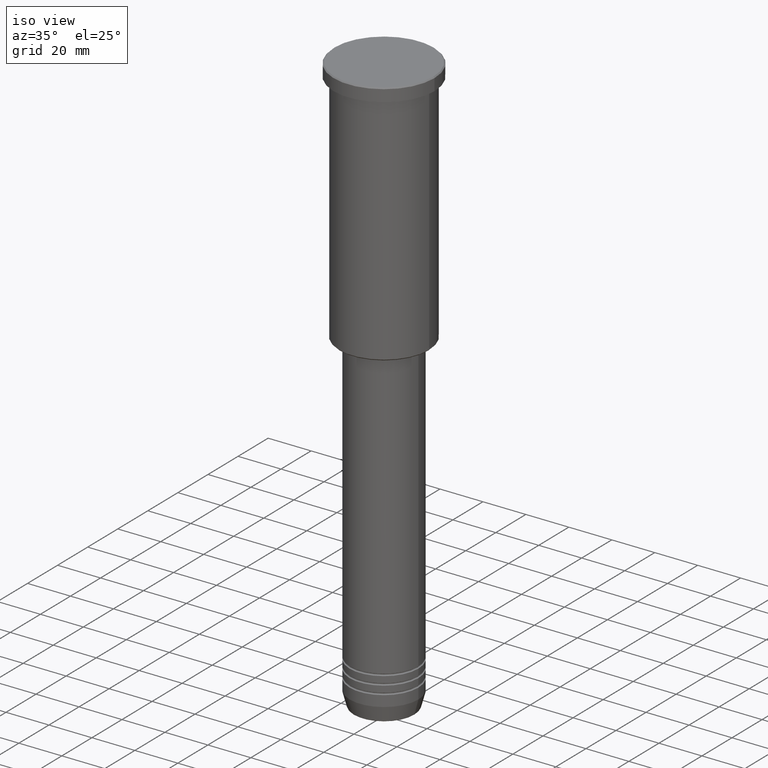
[diagram: clean part render]
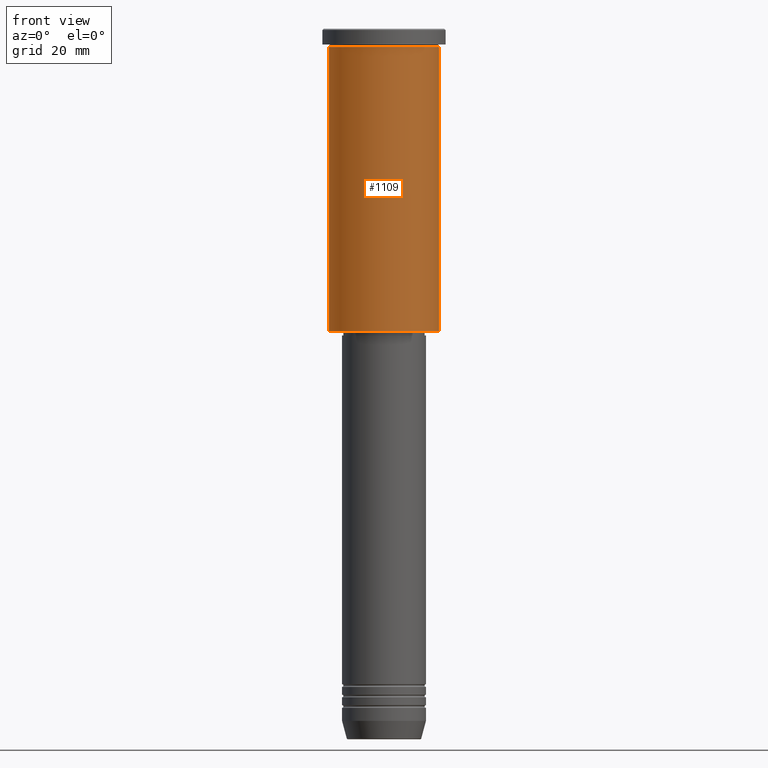
[diagram: tour spotlight — one face highlighted and labeled with its STEP entity id]
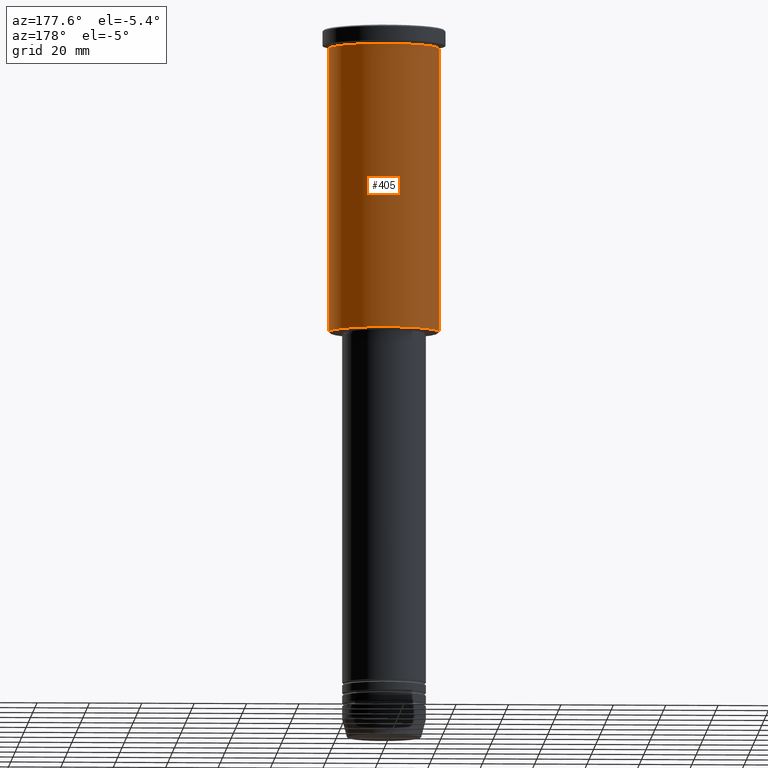
[diagram: tour spotlight — one face highlighted and labeled with its STEP entity id]
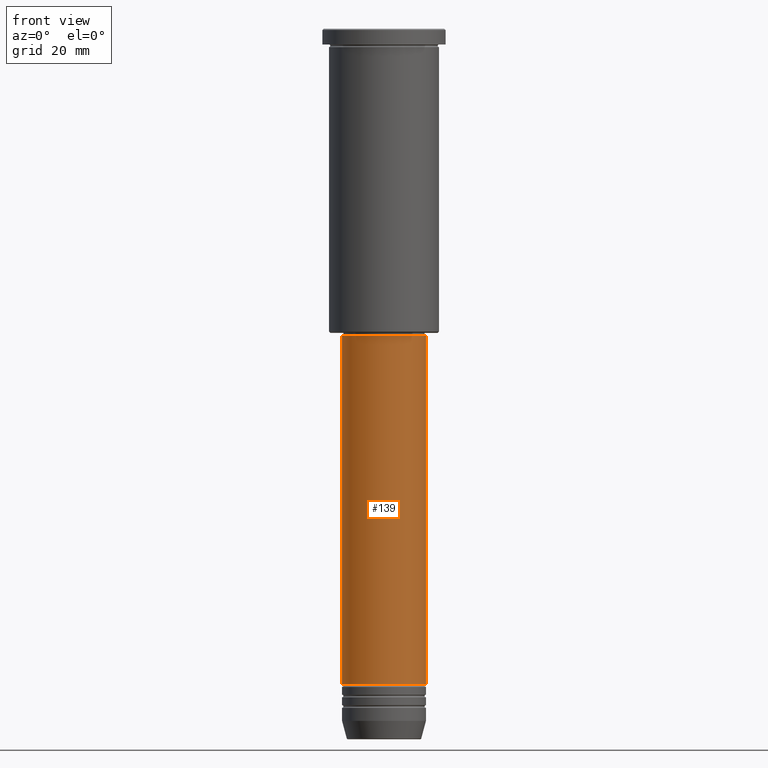
[diagram: tour spotlight — one face highlighted and labeled with its STEP entity id]
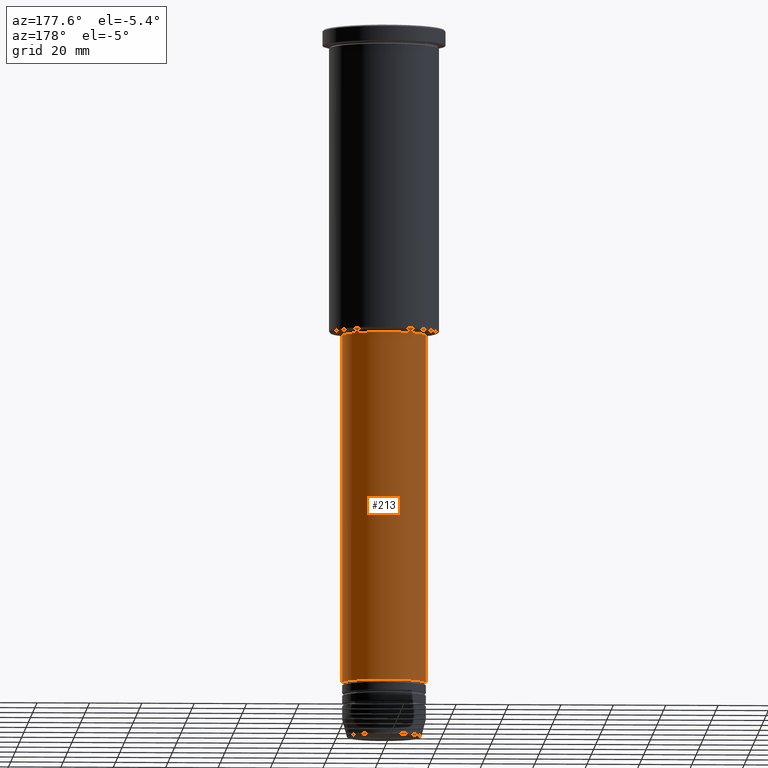
[diagram: tour spotlight — one face highlighted and labeled with its STEP entity id]
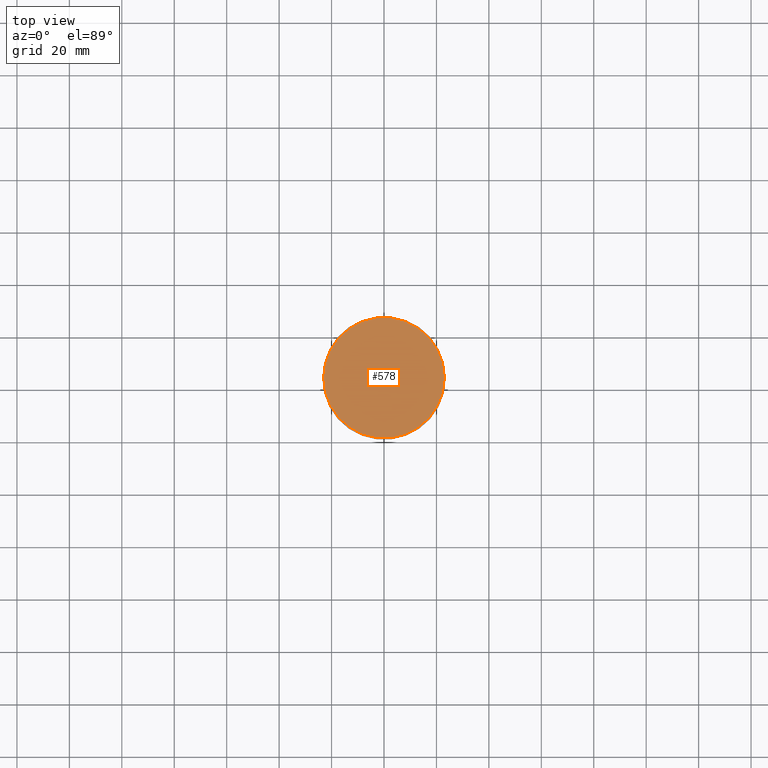
[diagram: tour spotlight — one face highlighted and labeled with its STEP entity id]
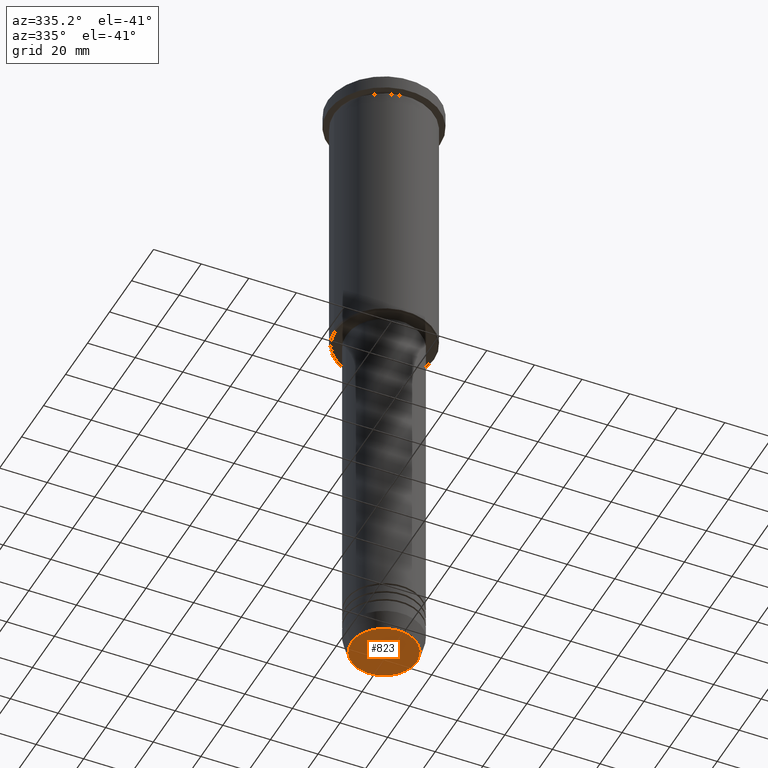
[diagram: tour spotlight — one face highlighted and labeled with its STEP entity id]
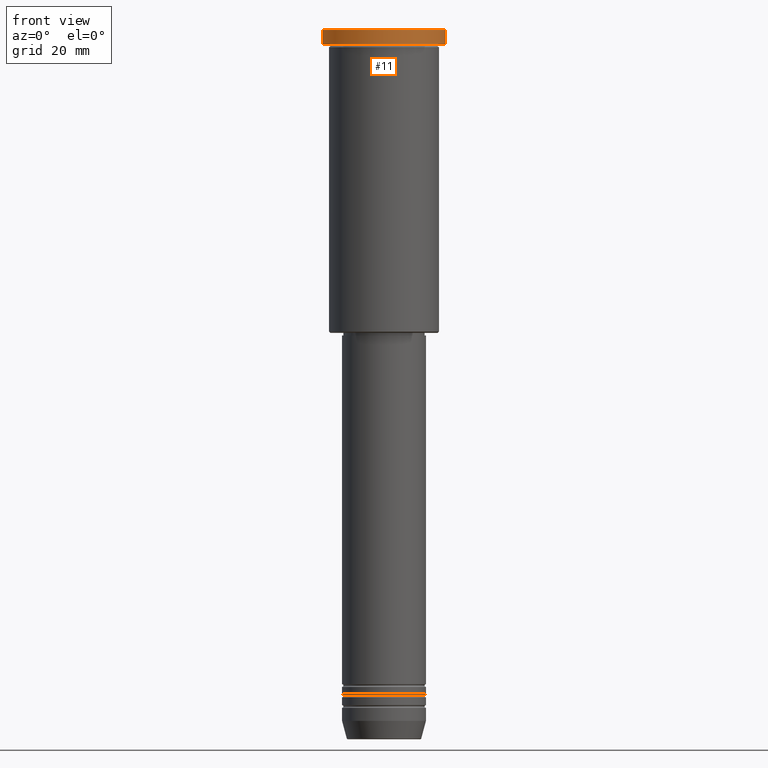
[diagram: tour spotlight — one face highlighted and labeled with its STEP entity id]
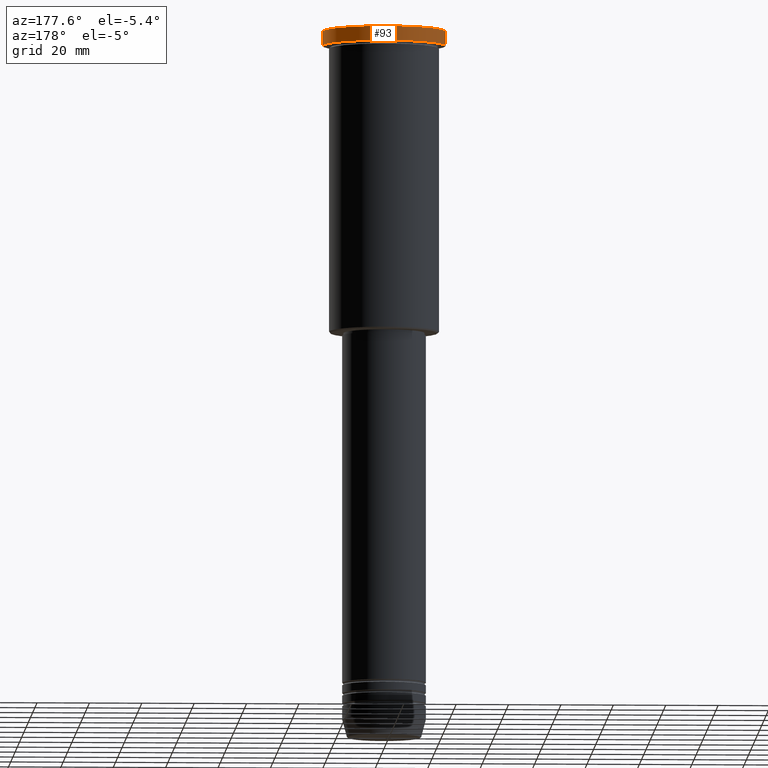
[diagram: tour spotlight — one face highlighted and labeled with its STEP entity id]
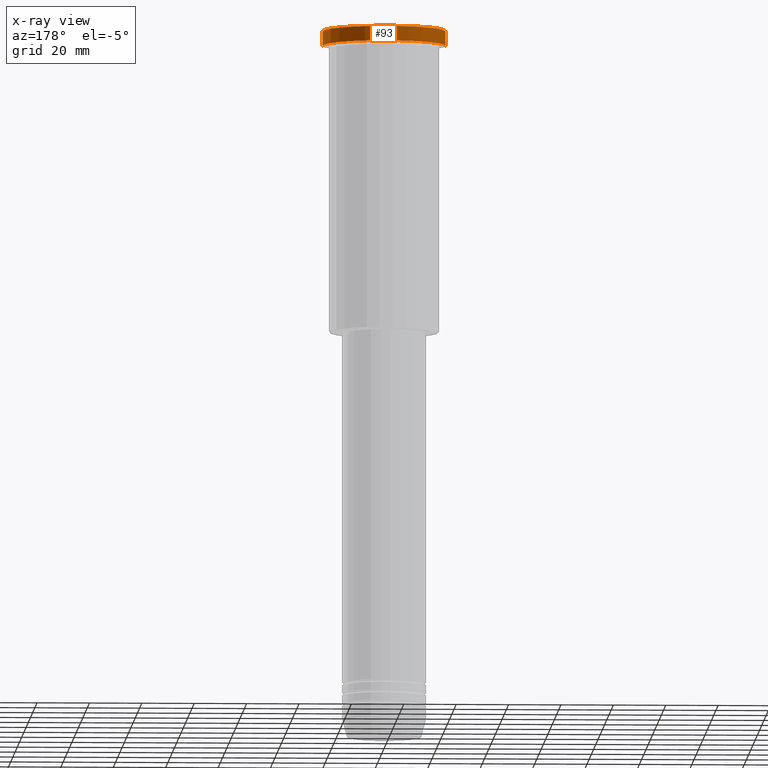
[diagram: x-ray of the same camera — body ghosted, this tour face saturated]
A machine part: a face-by-face anatomy tour. The part has 43 B-rep faces; the first image is the clean iso view, then the 8 largest visible faces are spotlighted one at a time (largest first), each with its STEP entity span.

Face 1 — front view, entity #1109. In plain terms, the highlighted cylindrical surface (partial cylindrical patch) has radius 21 mm, axis along (-0, -0, 1).
Definition (entity closure, byte-faithful):
#18 = DIRECTION ( 'NONE',  ( 1.000000000000000000, 0.000000000000000000, 0.000000000000000000 ) ) ;
#114 = DIRECTION ( 'NONE',  ( -0.000000000000000000, -0.000000000000000000, 1.000000000000000000 ) ) ;
#135 = ORIENTED_EDGE ( 'NONE', *, *, #999, .F. ) ;
#149 = EDGE_LOOP ( 'NONE', ( #135, #496, #667, #785 ) ) ;
#160 = CARTESIAN_POINT ( 'NONE',  ( 21.00000000000000000, 0.000000000000000000, -115.4999999999999574 ) ) ;
#165 = VECTOR ( 'NONE', #196, 1000.000000000000000 ) ;
#184 = CIRCLE ( 'NONE', #1144, 21.00000000000000000 ) ;
#192 = CARTESIAN_POINT ( 'NONE',  ( -21.00000000000000000, 2.571758278209441661E-15, 0.000000000000000000 ) ) ;
#196 = DIRECTION ( 'NONE',  ( -0.000000000000000000, -0.000000000000000000, 1.000000000000000000 ) ) ;
#314 = VERTEX_POINT ( 'NONE', #771 ) ;
#319 = CARTESIAN_POINT ( 'NONE',  ( 21.00000000000000000, 0.000000000000000000, -6.999999999999993783 ) ) ;
#404 = AXIS2_PLACEMENT_3D ( 'NONE', #748, #737, #1018 ) ;
#422 = LINE ( 'NONE', #551, #895 ) ;
#444 = FACE_OUTER_BOUND ( 'NONE', #149, .T. ) ;
#461 = CARTESIAN_POINT ( 'NONE',  ( 0.000000000000000000, 0.000000000000000000, -6.999999999999993783 ) ) ;
#470 = LINE ( 'NONE', #192, #165 ) ;
#471 = AXIS2_PLACEMENT_3D ( 'NONE', #461, #837, #18 ) ;
#490 = VERTEX_POINT ( 'NONE', #160 ) ;
#496 = ORIENTED_EDGE ( 'NONE', *, *, #829, .T. ) ;
#499 = EDGE_CURVE ( 'NONE', #490, #575, #422, .T. ) ;
#551 = CARTESIAN_POINT ( 'NONE',  ( 21.00000000000000000, 0.000000000000000000, 0.000000000000000000 ) ) ;
#575 = VERTEX_POINT ( 'NONE', #319 ) ;
#667 = ORIENTED_EDGE ( 'NONE', *, *, #499, .T. ) ;
#737 = DIRECTION ( 'NONE',  ( -0.000000000000000000, -0.000000000000000000, 1.000000000000000000 ) ) ;
#748 = CARTESIAN_POINT ( 'NONE',  ( 0.000000000000000000, 0.000000000000000000, 0.000000000000000000 ) ) ;
#771 = CARTESIAN_POINT ( 'NONE',  ( -21.00000000000000000, 2.571758278209441661E-15, -6.999999999999993783 ) ) ;
#785 = ORIENTED_EDGE ( 'NONE', *, *, #1121, .F. ) ;
#828 = CYLINDRICAL_SURFACE ( 'NONE', #404, 21.00000000000000000 ) ;
#829 = EDGE_CURVE ( 'NONE', #1116, #490, #184, .T. ) ;
#837 = DIRECTION ( 'NONE',  ( -0.000000000000000000, -0.000000000000000000, 1.000000000000000000 ) ) ;
#868 = DIRECTION ( 'NONE',  ( -1.000000000000000000, 0.000000000000000000, 0.000000000000000000 ) ) ;
#895 = VECTOR ( 'NONE', #1005, 1000.000000000000000 ) ;
#947 = CARTESIAN_POINT ( 'NONE',  ( 0.000000000000000000, 0.000000000000000000, -115.4999999999999574 ) ) ;
#999 = EDGE_CURVE ( 'NONE', #1116, #314, #470, .T. ) ;
#1005 = DIRECTION ( 'NONE',  ( -0.000000000000000000, -0.000000000000000000, 1.000000000000000000 ) ) ;
#1018 = DIRECTION ( 'NONE',  ( 1.000000000000000000, 0.000000000000000000, 0.000000000000000000 ) ) ;
#1072 = CIRCLE ( 'NONE', #471, 21.00000000000000000 ) ;
#1096 = CARTESIAN_POINT ( 'NONE',  ( -21.00000000000000000, 2.571758278209441661E-15, -115.4999999999999574 ) ) ;
#1109 = ADVANCED_FACE ( 'NONE', ( #444 ), #828, .T. ) ;
#1116 = VERTEX_POINT ( 'NONE', #1096 ) ;
#1121 = EDGE_CURVE ( 'NONE', #314, #575, #1072, .T. ) ;
#1144 = AXIS2_PLACEMENT_3D ( 'NONE', #947, #114, #868 ) ;

Face 2 — auxiliary view, entity #405. In plain terms, the highlighted cylindrical surface (partial cylindrical patch) has radius 21 mm, axis along (-0, -0, 1).
Definition (entity closure, byte-faithful):
#58 = CYLINDRICAL_SURFACE ( 'NONE', #1067, 21.00000000000000000 ) ;
#96 = DIRECTION ( 'NONE',  ( -0.000000000000000000, -0.000000000000000000, 1.000000000000000000 ) ) ;
#132 = ORIENTED_EDGE ( 'NONE', *, *, #175, .F. ) ;
#160 = CARTESIAN_POINT ( 'NONE',  ( 21.00000000000000000, 0.000000000000000000, -115.4999999999999574 ) ) ;
#165 = VECTOR ( 'NONE', #196, 1000.000000000000000 ) ;
#175 = EDGE_CURVE ( 'NONE', #575, #314, #858, .T. ) ;
#192 = CARTESIAN_POINT ( 'NONE',  ( -21.00000000000000000, 2.571758278209441661E-15, 0.000000000000000000 ) ) ;
#196 = DIRECTION ( 'NONE',  ( -0.000000000000000000, -0.000000000000000000, 1.000000000000000000 ) ) ;
#222 = CARTESIAN_POINT ( 'NONE',  ( 0.000000000000000000, 0.000000000000000000, 0.000000000000000000 ) ) ;
#252 = DIRECTION ( 'NONE',  ( -0.000000000000000000, -0.000000000000000000, 1.000000000000000000 ) ) ;
#276 = DIRECTION ( 'NONE',  ( -1.000000000000000000, 0.000000000000000000, 0.000000000000000000 ) ) ;
#314 = VERTEX_POINT ( 'NONE', #771 ) ;
#319 = CARTESIAN_POINT ( 'NONE',  ( 21.00000000000000000, 0.000000000000000000, -6.999999999999993783 ) ) ;
#334 = ORIENTED_EDGE ( 'NONE', *, *, #673, .T. ) ;
#405 = ADVANCED_FACE ( 'NONE', ( #873 ), #58, .T. ) ;
#422 = LINE ( 'NONE', #551, #895 ) ;
#470 = LINE ( 'NONE', #192, #165 ) ;
#490 = VERTEX_POINT ( 'NONE', #160 ) ;
#498 = DIRECTION ( 'NONE',  ( 1.000000000000000000, 0.000000000000000000, 0.000000000000000000 ) ) ;
#499 = EDGE_CURVE ( 'NONE', #490, #575, #422, .T. ) ;
#523 = EDGE_LOOP ( 'NONE', ( #334, #716, #132, #541 ) ) ;
#541 = ORIENTED_EDGE ( 'NONE', *, *, #499, .F. ) ;
#551 = CARTESIAN_POINT ( 'NONE',  ( 21.00000000000000000, 0.000000000000000000, 0.000000000000000000 ) ) ;
#552 = CARTESIAN_POINT ( 'NONE',  ( 0.000000000000000000, 0.000000000000000000, -115.4999999999999574 ) ) ;
#575 = VERTEX_POINT ( 'NONE', #319 ) ;
#673 = EDGE_CURVE ( 'NONE', #490, #1116, #768, .T. ) ;
#713 = CARTESIAN_POINT ( 'NONE',  ( 0.000000000000000000, 0.000000000000000000, -6.999999999999993783 ) ) ;
#716 = ORIENTED_EDGE ( 'NONE', *, *, #999, .T. ) ;
#768 = CIRCLE ( 'NONE', #939, 21.00000000000000000 ) ;
#771 = CARTESIAN_POINT ( 'NONE',  ( -21.00000000000000000, 2.571758278209441661E-15, -6.999999999999993783 ) ) ;
#858 = CIRCLE ( 'NONE', #1013, 21.00000000000000000 ) ;
#873 = FACE_OUTER_BOUND ( 'NONE', #523, .T. ) ;
#895 = VECTOR ( 'NONE', #1005, 1000.000000000000000 ) ;
#939 = AXIS2_PLACEMENT_3D ( 'NONE', #552, #96, #276 ) ;
#961 = DIRECTION ( 'NONE',  ( -0.000000000000000000, -0.000000000000000000, 1.000000000000000000 ) ) ;
#999 = EDGE_CURVE ( 'NONE', #1116, #314, #470, .T. ) ;
#1005 = DIRECTION ( 'NONE',  ( -0.000000000000000000, -0.000000000000000000, 1.000000000000000000 ) ) ;
#1013 = AXIS2_PLACEMENT_3D ( 'NONE', #713, #252, #1155 ) ;
#1067 = AXIS2_PLACEMENT_3D ( 'NONE', #222, #961, #498 ) ;
#1096 = CARTESIAN_POINT ( 'NONE',  ( -21.00000000000000000, 2.571758278209441661E-15, -115.4999999999999574 ) ) ;
#1116 = VERTEX_POINT ( 'NONE', #1096 ) ;
#1155 = DIRECTION ( 'NONE',  ( 1.000000000000000000, 0.000000000000000000, 0.000000000000000000 ) ) ;

Face 3 — front view, entity #139. In plain terms, the highlighted cylindrical surface (partial cylindrical patch) has radius 16 mm, axis along (-0, -0, 1).
Definition (entity closure, byte-faithful):
#40 = DIRECTION ( 'NONE',  ( 1.000000000000000000, 0.000000000000000000, 0.000000000000000000 ) ) ;
#73 = VERTEX_POINT ( 'NONE', #567 ) ;
#138 = CARTESIAN_POINT ( 'NONE',  ( 0.000000000000000000, 0.000000000000000000, -249.9999999999999147 ) ) ;
#139 = ADVANCED_FACE ( 'NONE', ( #955 ), #383, .T. ) ;
#188 = CARTESIAN_POINT ( 'NONE',  ( -16.00000000000000000, 1.959434878635765131E-15, 0.000000000000000000 ) ) ;
#244 = VECTOR ( 'NONE', #321, 1000.000000000000000 ) ;
#249 = CARTESIAN_POINT ( 'NONE',  ( -16.00000000000000355, 1.959434878635765526E-15, -117.0000000000000426 ) ) ;
#255 = AXIS2_PLACEMENT_3D ( 'NONE', #138, #691, #772 ) ;
#261 = ORIENTED_EDGE ( 'NONE', *, *, #335, .T. ) ;
#273 = AXIS2_PLACEMENT_3D ( 'NONE', #397, #1046, #318 ) ;
#294 = CARTESIAN_POINT ( 'NONE',  ( 16.00000000000000355, 0.000000000000000000, -117.0000000000000426 ) ) ;
#311 = EDGE_CURVE ( 'NONE', #886, #804, #441, .T. ) ;
#318 = DIRECTION ( 'NONE',  ( 1.000000000000000000, 0.000000000000000000, 0.000000000000000000 ) ) ;
#321 = DIRECTION ( 'NONE',  ( -0.000000000000000000, -0.000000000000000000, 1.000000000000000000 ) ) ;
#335 = EDGE_CURVE ( 'NONE', #818, #73, #420, .T. ) ;
#336 = ORIENTED_EDGE ( 'NONE', *, *, #311, .F. ) ;
#345 = ORIENTED_EDGE ( 'NONE', *, *, #733, .F. ) ;
#383 = CYLINDRICAL_SURFACE ( 'NONE', #273, 16.00000000000000000 ) ;
#397 = CARTESIAN_POINT ( 'NONE',  ( 0.000000000000000000, 0.000000000000000000, 0.000000000000000000 ) ) ;
#420 = CIRCLE ( 'NONE', #255, 16.00000000000000000 ) ;
#441 = CIRCLE ( 'NONE', #676, 16.00000000000000355 ) ;
#450 = LINE ( 'NONE', #188, #725 ) ;
#567 = CARTESIAN_POINT ( 'NONE',  ( 16.00000000000000000, 0.000000000000000000, -249.9999999999999147 ) ) ;
#573 = DIRECTION ( 'NONE',  ( -0.000000000000000000, -0.000000000000000000, 1.000000000000000000 ) ) ;
#579 = CARTESIAN_POINT ( 'NONE',  ( -16.00000000000000000, 1.959434878635765131E-15, -249.9999999999999147 ) ) ;
#598 = CARTESIAN_POINT ( 'NONE',  ( 0.000000000000000000, 0.000000000000000000, -117.0000000000000426 ) ) ;
#601 = CARTESIAN_POINT ( 'NONE',  ( 16.00000000000000000, 0.000000000000000000, 0.000000000000000000 ) ) ;
#607 = EDGE_LOOP ( 'NONE', ( #345, #261, #944, #336 ) ) ;
#676 = AXIS2_PLACEMENT_3D ( 'NONE', #598, #1036, #40 ) ;
#691 = DIRECTION ( 'NONE',  ( -0.000000000000000000, -0.000000000000000000, 1.000000000000000000 ) ) ;
#725 = VECTOR ( 'NONE', #573, 1000.000000000000000 ) ;
#733 = EDGE_CURVE ( 'NONE', #818, #886, #450, .T. ) ;
#772 = DIRECTION ( 'NONE',  ( 1.000000000000000000, 0.000000000000000000, 0.000000000000000000 ) ) ;
#804 = VERTEX_POINT ( 'NONE', #294 ) ;
#818 = VERTEX_POINT ( 'NONE', #579 ) ;
#886 = VERTEX_POINT ( 'NONE', #249 ) ;
#944 = ORIENTED_EDGE ( 'NONE', *, *, #1131, .T. ) ;
#955 = FACE_OUTER_BOUND ( 'NONE', #607, .T. ) ;
#971 = LINE ( 'NONE', #601, #244 ) ;
#1036 = DIRECTION ( 'NONE',  ( -0.000000000000000000, -0.000000000000000000, 1.000000000000000000 ) ) ;
#1046 = DIRECTION ( 'NONE',  ( -0.000000000000000000, -0.000000000000000000, 1.000000000000000000 ) ) ;
#1131 = EDGE_CURVE ( 'NONE', #73, #804, #971, .T. ) ;

Face 4 — auxiliary view, entity #213. In plain terms, the highlighted cylindrical surface (partial cylindrical patch) has radius 16 mm, axis along (-0, -0, 1).
Definition (entity closure, byte-faithful):
#7 = DIRECTION ( 'NONE',  ( 1.000000000000000000, 0.000000000000000000, 0.000000000000000000 ) ) ;
#73 = VERTEX_POINT ( 'NONE', #567 ) ;
#81 = DIRECTION ( 'NONE',  ( 1.000000000000000000, 0.000000000000000000, 0.000000000000000000 ) ) ;
#87 = ORIENTED_EDGE ( 'NONE', *, *, #815, .T. ) ;
#142 = ORIENTED_EDGE ( 'NONE', *, *, #1131, .F. ) ;
#187 = CIRCLE ( 'NONE', #317, 16.00000000000000355 ) ;
#188 = CARTESIAN_POINT ( 'NONE',  ( -16.00000000000000000, 1.959434878635765131E-15, 0.000000000000000000 ) ) ;
#213 = ADVANCED_FACE ( 'NONE', ( #428 ), #623, .T. ) ;
#244 = VECTOR ( 'NONE', #321, 1000.000000000000000 ) ;
#249 = CARTESIAN_POINT ( 'NONE',  ( -16.00000000000000355, 1.959434878635765526E-15, -117.0000000000000426 ) ) ;
#294 = CARTESIAN_POINT ( 'NONE',  ( 16.00000000000000355, 0.000000000000000000, -117.0000000000000426 ) ) ;
#317 = AXIS2_PLACEMENT_3D ( 'NONE', #1001, #528, #81 ) ;
#321 = DIRECTION ( 'NONE',  ( -0.000000000000000000, -0.000000000000000000, 1.000000000000000000 ) ) ;
#428 = FACE_OUTER_BOUND ( 'NONE', #709, .T. ) ;
#445 = AXIS2_PLACEMENT_3D ( 'NONE', #462, #1033, #766 ) ;
#450 = LINE ( 'NONE', #188, #725 ) ;
#462 = CARTESIAN_POINT ( 'NONE',  ( 0.000000000000000000, 0.000000000000000000, -249.9999999999999147 ) ) ;
#469 = CIRCLE ( 'NONE', #445, 16.00000000000000000 ) ;
#521 = ORIENTED_EDGE ( 'NONE', *, *, #733, .T. ) ;
#528 = DIRECTION ( 'NONE',  ( -0.000000000000000000, -0.000000000000000000, 1.000000000000000000 ) ) ;
#537 = DIRECTION ( 'NONE',  ( -0.000000000000000000, -0.000000000000000000, 1.000000000000000000 ) ) ;
#567 = CARTESIAN_POINT ( 'NONE',  ( 16.00000000000000000, 0.000000000000000000, -249.9999999999999147 ) ) ;
#573 = DIRECTION ( 'NONE',  ( -0.000000000000000000, -0.000000000000000000, 1.000000000000000000 ) ) ;
#579 = CARTESIAN_POINT ( 'NONE',  ( -16.00000000000000000, 1.959434878635765131E-15, -249.9999999999999147 ) ) ;
#601 = CARTESIAN_POINT ( 'NONE',  ( 16.00000000000000000, 0.000000000000000000, 0.000000000000000000 ) ) ;
#623 = CYLINDRICAL_SURFACE ( 'NONE', #872, 16.00000000000000000 ) ;
#709 = EDGE_LOOP ( 'NONE', ( #87, #521, #1081, #142 ) ) ;
#725 = VECTOR ( 'NONE', #573, 1000.000000000000000 ) ;
#733 = EDGE_CURVE ( 'NONE', #818, #886, #450, .T. ) ;
#766 = DIRECTION ( 'NONE',  ( 1.000000000000000000, 0.000000000000000000, 0.000000000000000000 ) ) ;
#804 = VERTEX_POINT ( 'NONE', #294 ) ;
#815 = EDGE_CURVE ( 'NONE', #73, #818, #469, .T. ) ;
#818 = VERTEX_POINT ( 'NONE', #579 ) ;
#872 = AXIS2_PLACEMENT_3D ( 'NONE', #993, #537, #7 ) ;
#886 = VERTEX_POINT ( 'NONE', #249 ) ;
#893 = EDGE_CURVE ( 'NONE', #804, #886, #187, .T. ) ;
#971 = LINE ( 'NONE', #601, #244 ) ;
#993 = CARTESIAN_POINT ( 'NONE',  ( 0.000000000000000000, 0.000000000000000000, 0.000000000000000000 ) ) ;
#1001 = CARTESIAN_POINT ( 'NONE',  ( 0.000000000000000000, 0.000000000000000000, -117.0000000000000426 ) ) ;
#1033 = DIRECTION ( 'NONE',  ( -0.000000000000000000, -0.000000000000000000, 1.000000000000000000 ) ) ;
#1081 = ORIENTED_EDGE ( 'NONE', *, *, #893, .F. ) ;
#1131 = EDGE_CURVE ( 'NONE', #73, #804, #971, .T. ) ;

Face 5 — top view, entity #578. In plain terms, the highlighted planar face has unit normal (0, -0, 1).
Definition (entity closure, byte-faithful):
#26 = FACE_OUTER_BOUND ( 'NONE', #91, .T. ) ;
#33 = CARTESIAN_POINT ( 'NONE',  ( 0.000000000000000000, 0.000000000000000000, 0.000000000000000000 ) ) ;
#91 = EDGE_LOOP ( 'NONE', ( #168, #396 ) ) ;
#134 = CARTESIAN_POINT ( 'NONE',  ( 0.000000000000000000, 0.000000000000000000, 0.000000000000000000 ) ) ;
#145 = AXIS2_PLACEMENT_3D ( 'NONE', #33, #922, #480 ) ;
#168 = ORIENTED_EDGE ( 'NONE', *, *, #708, .T. ) ;
#172 = DIRECTION ( 'NONE',  ( -0.000000000000000000, -0.000000000000000000, 1.000000000000000000 ) ) ;
#243 = AXIS2_PLACEMENT_3D ( 'NONE', #1176, #172, #746 ) ;
#380 = EDGE_CURVE ( 'NONE', #866, #1055, #593, .T. ) ;
#389 = DIRECTION ( 'NONE',  ( 1.000000000000000000, 0.000000000000000000, 0.000000000000000000 ) ) ;
#396 = ORIENTED_EDGE ( 'NONE', *, *, #380, .T. ) ;
#480 = DIRECTION ( 'NONE',  ( 1.000000000000000000, 0.000000000000000000, 0.000000000000000000 ) ) ;
#493 = DIRECTION ( 'NONE',  ( -0.000000000000000000, -0.000000000000000000, 1.000000000000000000 ) ) ;
#512 = CARTESIAN_POINT ( 'NONE',  ( 23.00000000000002487, 2.847303808017597717E-15, 0.000000000000000000 ) ) ;
#555 = CIRCLE ( 'NONE', #243, 23.00000000000002487 ) ;
#578 = ADVANCED_FACE ( 'NONE', ( #26 ), #1122, .T. ) ;
#593 = CIRCLE ( 'NONE', #1048, 23.00000000000002487 ) ;
#631 = CARTESIAN_POINT ( 'NONE',  ( -23.00000000000002487, 0.000000000000000000, 0.000000000000000000 ) ) ;
#708 = EDGE_CURVE ( 'NONE', #1055, #866, #555, .T. ) ;
#746 = DIRECTION ( 'NONE',  ( 1.000000000000000000, 0.000000000000000000, 0.000000000000000000 ) ) ;
#866 = VERTEX_POINT ( 'NONE', #512 ) ;
#922 = DIRECTION ( 'NONE',  ( 0.000000000000000000, -0.000000000000000000, 1.000000000000000000 ) ) ;
#1048 = AXIS2_PLACEMENT_3D ( 'NONE', #134, #493, #389 ) ;
#1055 = VERTEX_POINT ( 'NONE', #631 ) ;
#1122 = PLANE ( 'NONE',  #145 ) ;
#1176 = CARTESIAN_POINT ( 'NONE',  ( 0.000000000000000000, 0.000000000000000000, 0.000000000000000000 ) ) ;

Face 6 — auxiliary view, entity #823. In plain terms, the highlighted planar face has unit normal (0, -0, 1).
Definition (entity closure, byte-faithful):
#19 = FACE_OUTER_BOUND ( 'NONE', #1044, .T. ) ;
#57 = CIRCLE ( 'NONE', #639, 13.74069215899265828 ) ;
#65 = DIRECTION ( 'NONE',  ( 1.000000000000000000, 0.000000000000000000, 0.000000000000000000 ) ) ;
#110 = DIRECTION ( 'NONE',  ( 0.000000000000000000, -0.000000000000000000, 1.000000000000000000 ) ) ;
#127 = CIRCLE ( 'NONE', #877, 13.74069215899265828 ) ;
#144 = CARTESIAN_POINT ( 'NONE',  ( 13.74069215899265828, 0.000000000000000000, -271.0000000000000000 ) ) ;
#199 = EDGE_CURVE ( 'NONE', #313, #863, #57, .T. ) ;
#241 = DIRECTION ( 'NONE',  ( 0.000000000000000000, 0.000000000000000000, -1.000000000000000000 ) ) ;
#288 = DIRECTION ( 'NONE',  ( 0.000000000000000000, 0.000000000000000000, -1.000000000000000000 ) ) ;
#313 = VERTEX_POINT ( 'NONE', #388 ) ;
#332 = CARTESIAN_POINT ( 'NONE',  ( 0.000000000000000000, 0.000000000000000000, -271.0000000000000000 ) ) ;
#388 = CARTESIAN_POINT ( 'NONE',  ( -13.74069215899265828, 1.712322416342415986E-15, -271.0000000000000000 ) ) ;
#589 = PLANE ( 'NONE',  #1106 ) ;
#639 = AXIS2_PLACEMENT_3D ( 'NONE', #332, #241, #65 ) ;
#749 = CARTESIAN_POINT ( 'NONE',  ( 0.000000000000000000, 0.000000000000000000, -271.0000000000000000 ) ) ;
#758 = EDGE_CURVE ( 'NONE', #863, #313, #127, .T. ) ;
#823 = ADVANCED_FACE ( 'NONE', ( #19 ), #589, .F. ) ;
#824 = ORIENTED_EDGE ( 'NONE', *, *, #758, .T. ) ;
#825 = CARTESIAN_POINT ( 'NONE',  ( 0.000000000000000000, 0.000000000000000000, -271.0000000000000000 ) ) ;
#841 = DIRECTION ( 'NONE',  ( 1.000000000000000000, 0.000000000000000000, 0.000000000000000000 ) ) ;
#848 = DIRECTION ( 'NONE',  ( 1.000000000000000000, 0.000000000000000000, 0.000000000000000000 ) ) ;
#856 = ORIENTED_EDGE ( 'NONE', *, *, #199, .T. ) ;
#863 = VERTEX_POINT ( 'NONE', #144 ) ;
#877 = AXIS2_PLACEMENT_3D ( 'NONE', #825, #288, #841 ) ;
#1044 = EDGE_LOOP ( 'NONE', ( #824, #856 ) ) ;
#1106 = AXIS2_PLACEMENT_3D ( 'NONE', #749, #110, #848 ) ;

Face 7 — front view, entity #11. In plain terms, the highlighted cylindrical surface (partial cylindrical patch) has radius 23.5 mm, axis along (-0, -0, 1).
Definition (entity closure, byte-faithful):
#11 = ADVANCED_FACE ( 'NONE', ( #752 ), #356, .T. ) ;
#111 = LINE ( 'NONE', #1124, #583 ) ;
#121 = CIRCLE ( 'NONE', #641, 23.50000000000000000 ) ;
#126 = EDGE_CURVE ( 'NONE', #305, #1035, #762, .T. ) ;
#143 = VECTOR ( 'NONE', #587, 1000.000000000000000 ) ;
#152 = EDGE_CURVE ( 'NONE', #305, #267, #484, .T. ) ;
#156 = ORIENTED_EDGE ( 'NONE', *, *, #204, .T. ) ;
#182 = ORIENTED_EDGE ( 'NONE', *, *, #937, .T. ) ;
#204 = EDGE_CURVE ( 'NONE', #247, #1035, #121, .T. ) ;
#247 = VERTEX_POINT ( 'NONE', #832 ) ;
#250 = EDGE_LOOP ( 'NONE', ( #790, #634, #182, #156 ) ) ;
#267 = VERTEX_POINT ( 'NONE', #1110 ) ;
#281 = AXIS2_PLACEMENT_3D ( 'NONE', #361, #743, #570 ) ;
#295 = AXIS2_PLACEMENT_3D ( 'NONE', #940, #302, #946 ) ;
#302 = DIRECTION ( 'NONE',  ( -0.000000000000000000, -0.000000000000000000, 1.000000000000000000 ) ) ;
#305 = VERTEX_POINT ( 'NONE', #660 ) ;
#320 = CARTESIAN_POINT ( 'NONE',  ( -23.50000000000000000, 2.877919977996280320E-15, -0.5000000000000004441 ) ) ;
#356 = CYLINDRICAL_SURFACE ( 'NONE', #281, 23.50000000000000000 ) ;
#361 = CARTESIAN_POINT ( 'NONE',  ( 0.000000000000000000, 0.000000000000000000, 0.000000000000000000 ) ) ;
#419 = DIRECTION ( 'NONE',  ( 0.000000000000000000, 0.000000000000000000, -1.000000000000000000 ) ) ;
#484 = CIRCLE ( 'NONE', #295, 23.50000000000000000 ) ;
#570 = DIRECTION ( 'NONE',  ( 1.000000000000000000, 0.000000000000000000, 0.000000000000000000 ) ) ;
#583 = VECTOR ( 'NONE', #664, 1000.000000000000000 ) ;
#587 = DIRECTION ( 'NONE',  ( -0.000000000000000000, -0.000000000000000000, 1.000000000000000000 ) ) ;
#634 = ORIENTED_EDGE ( 'NONE', *, *, #152, .T. ) ;
#641 = AXIS2_PLACEMENT_3D ( 'NONE', #890, #419, #707 ) ;
#660 = CARTESIAN_POINT ( 'NONE',  ( -23.50000000000000000, 2.877919977996280320E-15, -5.999999999999993783 ) ) ;
#664 = DIRECTION ( 'NONE',  ( -0.000000000000000000, -0.000000000000000000, 1.000000000000000000 ) ) ;
#707 = DIRECTION ( 'NONE',  ( 1.000000000000000000, 0.000000000000000000, 0.000000000000000000 ) ) ;
#743 = DIRECTION ( 'NONE',  ( -0.000000000000000000, -0.000000000000000000, 1.000000000000000000 ) ) ;
#752 = FACE_OUTER_BOUND ( 'NONE', #250, .T. ) ;
#762 = LINE ( 'NONE', #962, #143 ) ;
#790 = ORIENTED_EDGE ( 'NONE', *, *, #126, .F. ) ;
#832 = CARTESIAN_POINT ( 'NONE',  ( 23.50000000000000000, 0.000000000000000000, -0.5000000000000004441 ) ) ;
#890 = CARTESIAN_POINT ( 'NONE',  ( 0.000000000000000000, 0.000000000000000000, -0.5000000000000004441 ) ) ;
#937 = EDGE_CURVE ( 'NONE', #267, #247, #111, .T. ) ;
#940 = CARTESIAN_POINT ( 'NONE',  ( 0.000000000000000000, 0.000000000000000000, -5.999999999999993783 ) ) ;
#946 = DIRECTION ( 'NONE',  ( 1.000000000000000000, 0.000000000000000000, 0.000000000000000000 ) ) ;
#962 = CARTESIAN_POINT ( 'NONE',  ( -23.50000000000000000, 2.877919977996280320E-15, 0.000000000000000000 ) ) ;
#1035 = VERTEX_POINT ( 'NONE', #320 ) ;
#1110 = CARTESIAN_POINT ( 'NONE',  ( 23.50000000000000000, 0.000000000000000000, -5.999999999999993783 ) ) ;
#1124 = CARTESIAN_POINT ( 'NONE',  ( 23.50000000000000000, 0.000000000000000000, 0.000000000000000000 ) ) ;

Face 8 — auxiliary view, entity #93. An x-ray twin of the same camera follows (body ghosted, this face saturated) — the face is partly hidden behind the body. In plain terms, the highlighted cylindrical surface (partial cylindrical patch) has radius 23.5 mm, axis along (-0, -0, 1).
Definition (entity closure, byte-faithful):
#69 = EDGE_CURVE ( 'NONE', #267, #305, #223, .T. ) ;
#78 = CIRCLE ( 'NONE', #980, 23.50000000000000000 ) ;
#93 = ADVANCED_FACE ( 'NONE', ( #113 ), #488, .T. ) ;
#111 = LINE ( 'NONE', #1124, #583 ) ;
#113 = FACE_OUTER_BOUND ( 'NONE', #352, .T. ) ;
#126 = EDGE_CURVE ( 'NONE', #305, #1035, #762, .T. ) ;
#129 = AXIS2_PLACEMENT_3D ( 'NONE', #285, #365, #833 ) ;
#143 = VECTOR ( 'NONE', #587, 1000.000000000000000 ) ;
#223 = CIRCLE ( 'NONE', #129, 23.50000000000000000 ) ;
#247 = VERTEX_POINT ( 'NONE', #832 ) ;
#267 = VERTEX_POINT ( 'NONE', #1110 ) ;
#285 = CARTESIAN_POINT ( 'NONE',  ( 0.000000000000000000, 0.000000000000000000, -5.999999999999993783 ) ) ;
#303 = DIRECTION ( 'NONE',  ( 1.000000000000000000, 0.000000000000000000, 0.000000000000000000 ) ) ;
#305 = VERTEX_POINT ( 'NONE', #660 ) ;
#307 = CARTESIAN_POINT ( 'NONE',  ( 0.000000000000000000, 0.000000000000000000, 0.000000000000000000 ) ) ;
#320 = CARTESIAN_POINT ( 'NONE',  ( -23.50000000000000000, 2.877919977996280320E-15, -0.5000000000000004441 ) ) ;
#327 = ORIENTED_EDGE ( 'NONE', *, *, #1022, .T. ) ;
#352 = EDGE_LOOP ( 'NONE', ( #1139, #674, #327, #689 ) ) ;
#365 = DIRECTION ( 'NONE',  ( -0.000000000000000000, -0.000000000000000000, 1.000000000000000000 ) ) ;
#488 = CYLINDRICAL_SURFACE ( 'NONE', #1050, 23.50000000000000000 ) ;
#580 = DIRECTION ( 'NONE',  ( 0.000000000000000000, 0.000000000000000000, -1.000000000000000000 ) ) ;
#583 = VECTOR ( 'NONE', #664, 1000.000000000000000 ) ;
#587 = DIRECTION ( 'NONE',  ( -0.000000000000000000, -0.000000000000000000, 1.000000000000000000 ) ) ;
#660 = CARTESIAN_POINT ( 'NONE',  ( -23.50000000000000000, 2.877919977996280320E-15, -5.999999999999993783 ) ) ;
#664 = DIRECTION ( 'NONE',  ( -0.000000000000000000, -0.000000000000000000, 1.000000000000000000 ) ) ;
#674 = ORIENTED_EDGE ( 'NONE', *, *, #126, .T. ) ;
#689 = ORIENTED_EDGE ( 'NONE', *, *, #937, .F. ) ;
#762 = LINE ( 'NONE', #962, #143 ) ;
#832 = CARTESIAN_POINT ( 'NONE',  ( 23.50000000000000000, 0.000000000000000000, -0.5000000000000004441 ) ) ;
#833 = DIRECTION ( 'NONE',  ( 1.000000000000000000, 0.000000000000000000, 0.000000000000000000 ) ) ;
#847 = DIRECTION ( 'NONE',  ( -0.000000000000000000, -0.000000000000000000, 1.000000000000000000 ) ) ;
#859 = DIRECTION ( 'NONE',  ( 1.000000000000000000, 0.000000000000000000, 0.000000000000000000 ) ) ;
#937 = EDGE_CURVE ( 'NONE', #267, #247, #111, .T. ) ;
#948 = CARTESIAN_POINT ( 'NONE',  ( 0.000000000000000000, 0.000000000000000000, -0.5000000000000004441 ) ) ;
#962 = CARTESIAN_POINT ( 'NONE',  ( -23.50000000000000000, 2.877919977996280320E-15, 0.000000000000000000 ) ) ;
#980 = AXIS2_PLACEMENT_3D ( 'NONE', #948, #580, #303 ) ;
#1022 = EDGE_CURVE ( 'NONE', #1035, #247, #78, .T. ) ;
#1035 = VERTEX_POINT ( 'NONE', #320 ) ;
#1050 = AXIS2_PLACEMENT_3D ( 'NONE', #307, #847, #859 ) ;
#1110 = CARTESIAN_POINT ( 'NONE',  ( 23.50000000000000000, 0.000000000000000000, -5.999999999999993783 ) ) ;
#1124 = CARTESIAN_POINT ( 'NONE',  ( 23.50000000000000000, 0.000000000000000000, 0.000000000000000000 ) ) ;
#1139 = ORIENTED_EDGE ( 'NONE', *, *, #69, .T. ) ;